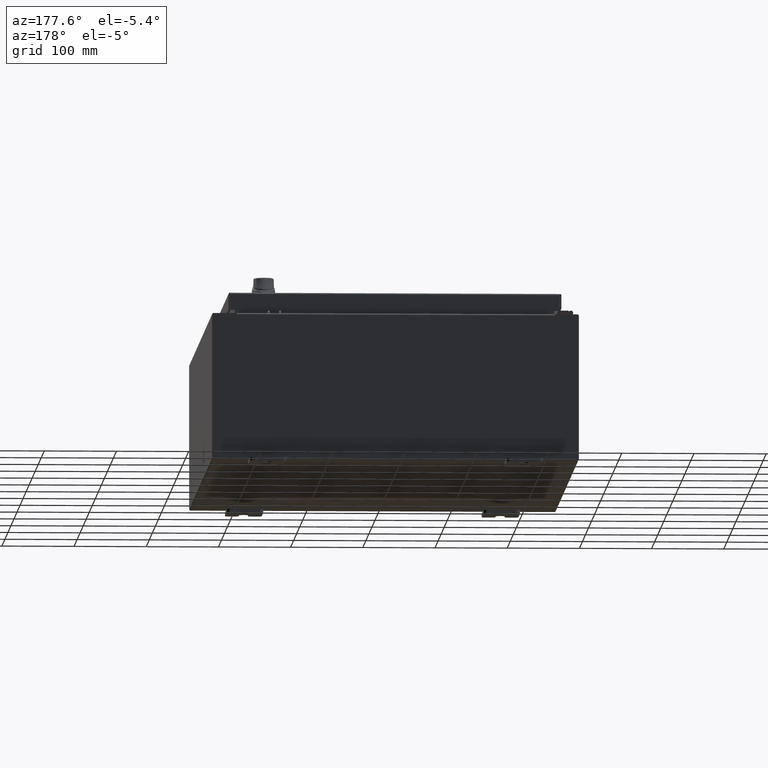
[diagram: clean part render]
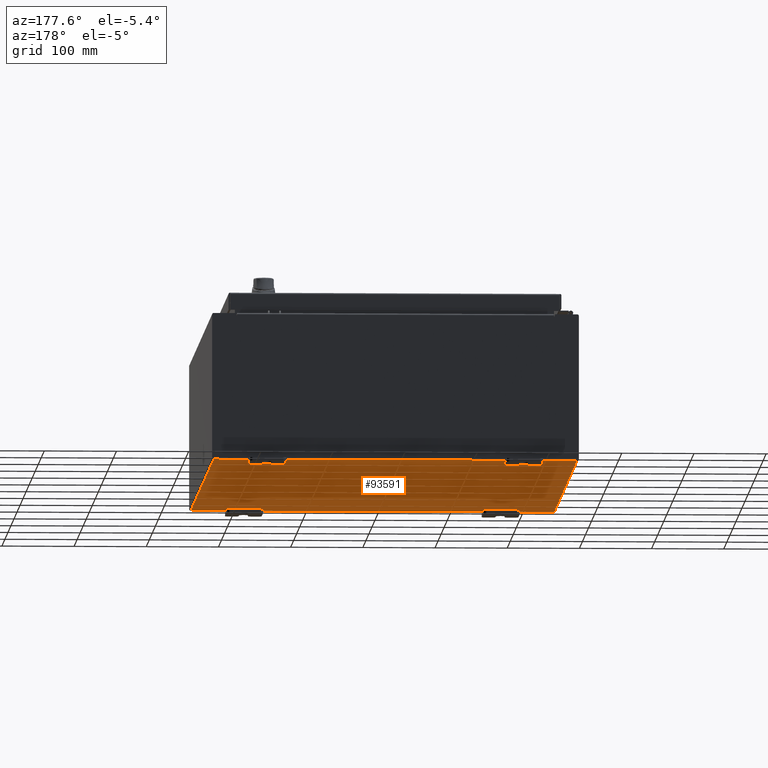
[diagram: same view with one face highlighted and labeled with its STEP entity id]
A machine part, auxiliary view. The second image highlights one B-rep face of the part: STEP entity #93591.
In plain terms, the highlighted planar face has unit normal (0, 0, -1).
Its self-contained STEP definition (entity closure, byte-faithful):
#2744 = VERTEX_POINT ( 'NONE', #48581 ) ;
#6621 = EDGE_CURVE ( 'NONE', #106928, #2744, #53497, .T. ) ;
#11807 = LINE ( 'NONE', #59792, #108029 ) ;
#15627 = AXIS2_PLACEMENT_3D ( 'NONE', #90834, #36665, #99950 ) ;
#19123 = CARTESIAN_POINT ( 'NONE',  ( 9.912300000000000100, 14.92530000000000500, -0.07469999999999994700 ) ) ;
#20522 = ORIENTED_EDGE ( 'NONE', *, *, #40064, .F. ) ;
#22642 = DIRECTION ( 'NONE',  ( -0.0000000000000000000, 1.000000000000000000, -0.0000000000000000000 ) ) ;
#22851 = EDGE_LOOP ( 'NONE', ( #20522, #99663, #51234, #72570 ) ) ;
#23026 = DIRECTION ( 'NONE',  ( -1.000000000000000000, -0.0000000000000000000, -0.0000000000000000000 ) ) ;
#27290 = VERTEX_POINT ( 'NONE', #66413 ) ;
#27767 = LINE ( 'NONE', #85888, #57497 ) ;
#27917 = DIRECTION ( 'NONE',  ( -0.0000000000000000000, -1.000000000000000000, -0.0000000000000000000 ) ) ;
#29482 = VECTOR ( 'NONE', #27917, 39.37007874015748100 ) ;
#33047 = CARTESIAN_POINT ( 'NONE',  ( -9.912300000000000100, 14.92530000000000500, -0.07470000000000000300 ) ) ;
#35383 = EDGE_CURVE ( 'NONE', #106928, #62337, #11807, .T. ) ;
#36665 = DIRECTION ( 'NONE',  ( 0.0000000000000000000, 0.0000000000000000000, -1.000000000000000000 ) ) ;
#40064 = EDGE_CURVE ( 'NONE', #27290, #2744, #69269, .T. ) ;
#48581 = CARTESIAN_POINT ( 'NONE',  ( 9.912300000000000100, -14.92529999999999600, -0.07470000000000000300 ) ) ;
#51234 = ORIENTED_EDGE ( 'NONE', *, *, #35383, .F. ) ;
#53289 = CARTESIAN_POINT ( 'NONE',  ( -10.00000000000000000, -14.92529999999999600, -0.07470000000000000300 ) ) ;
#53497 = LINE ( 'NONE', #72610, #29482 ) ;
#57497 = VECTOR ( 'NONE', #22642, 39.37007874015748100 ) ;
#59792 = CARTESIAN_POINT ( 'NONE',  ( -10.00000000000000000, 14.92530000000000500, -0.07470000000000000300 ) ) ;
#62337 = VERTEX_POINT ( 'NONE', #33047 ) ;
#66413 = CARTESIAN_POINT ( 'NONE',  ( -9.912300000000000100, -14.92529999999999600, -0.07469999999999994700 ) ) ;
#69269 = LINE ( 'NONE', #53289, #90424 ) ;
#72570 = ORIENTED_EDGE ( 'NONE', *, *, #6621, .T. ) ;
#72610 = CARTESIAN_POINT ( 'NONE',  ( 9.912300000000000100, 14.92530000000000500, -0.07469999999999994700 ) ) ;
#77268 = FACE_OUTER_BOUND ( 'NONE', #22851, .T. ) ;
#81366 = PLANE ( 'NONE',  #15627 ) ;
#85888 = CARTESIAN_POINT ( 'NONE',  ( -9.912300000000000100, -14.92529999999999600, -0.07469999999999994700 ) ) ;
#89649 = DIRECTION ( 'NONE',  ( 1.000000000000000000, 0.0000000000000000000, 0.0000000000000000000 ) ) ;
#90424 = VECTOR ( 'NONE', #89649, 39.37007874015748100 ) ;
#90834 = CARTESIAN_POINT ( 'NONE',  ( 0.0000000000000000000, 0.0000000000000000000, -0.07470000000000000300 ) ) ;
#93190 = EDGE_CURVE ( 'NONE', #27290, #62337, #27767, .T. ) ;
#93591 = ADVANCED_FACE ( 'NONE', ( #77268 ), #81366, .T. ) ;
#99663 = ORIENTED_EDGE ( 'NONE', *, *, #93190, .T. ) ;
#99950 = DIRECTION ( 'NONE',  ( -1.000000000000000000, 0.0000000000000000000, -0.0000000000000000000 ) ) ;
#106928 = VERTEX_POINT ( 'NONE', #19123 ) ;
#108029 = VECTOR ( 'NONE', #23026, 39.37007874015748100 ) ;